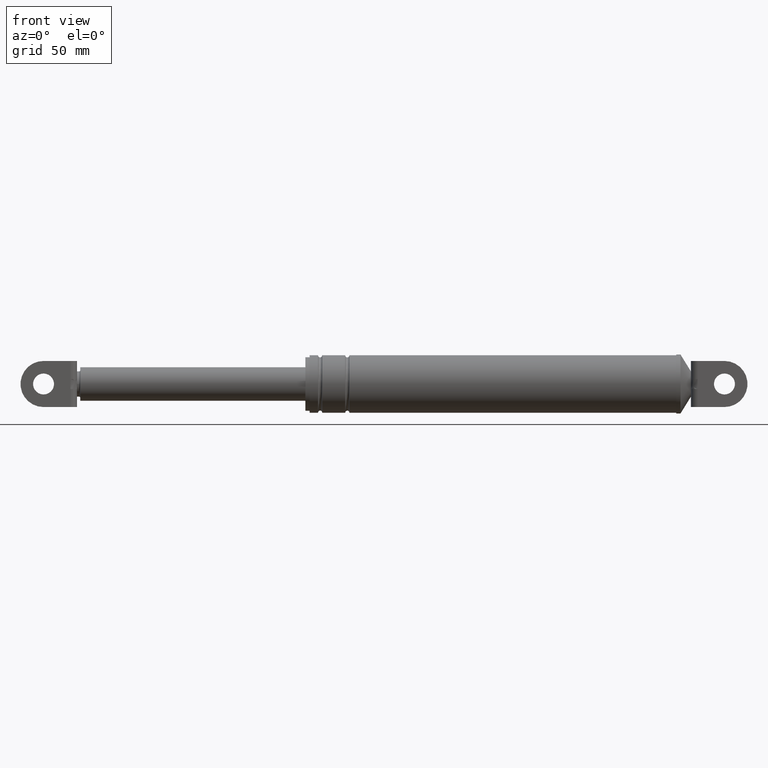
[diagram: clean part render]
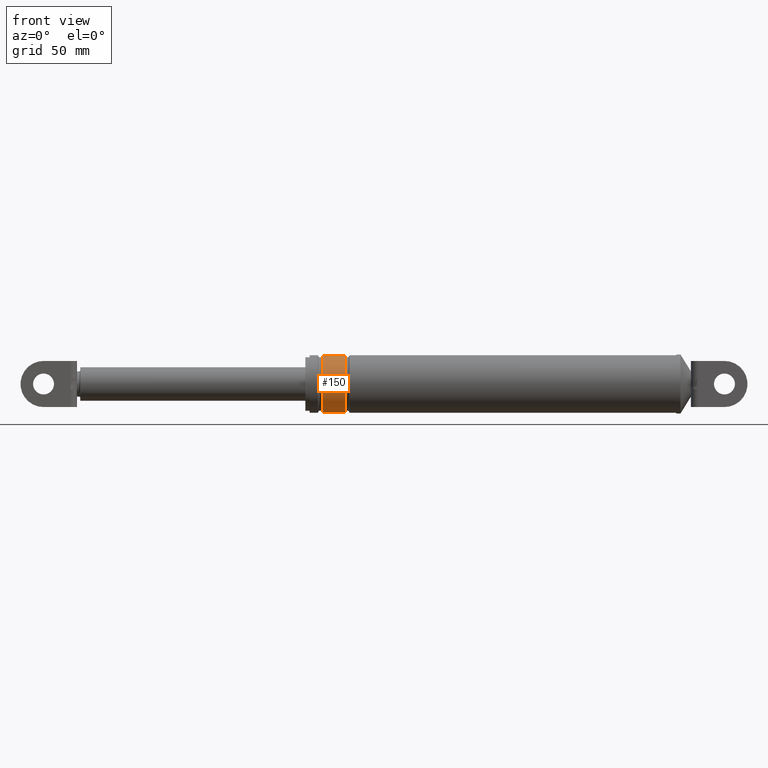
[diagram: same view with one face highlighted and labeled with its STEP entity id]
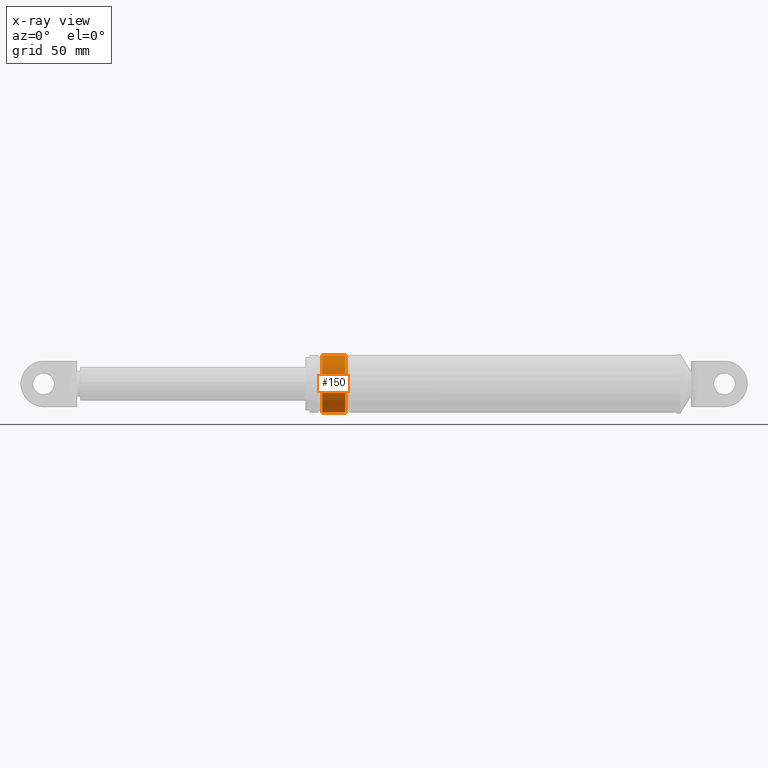
[diagram: x-ray of the same camera — body ghosted, the highlighted face saturated]
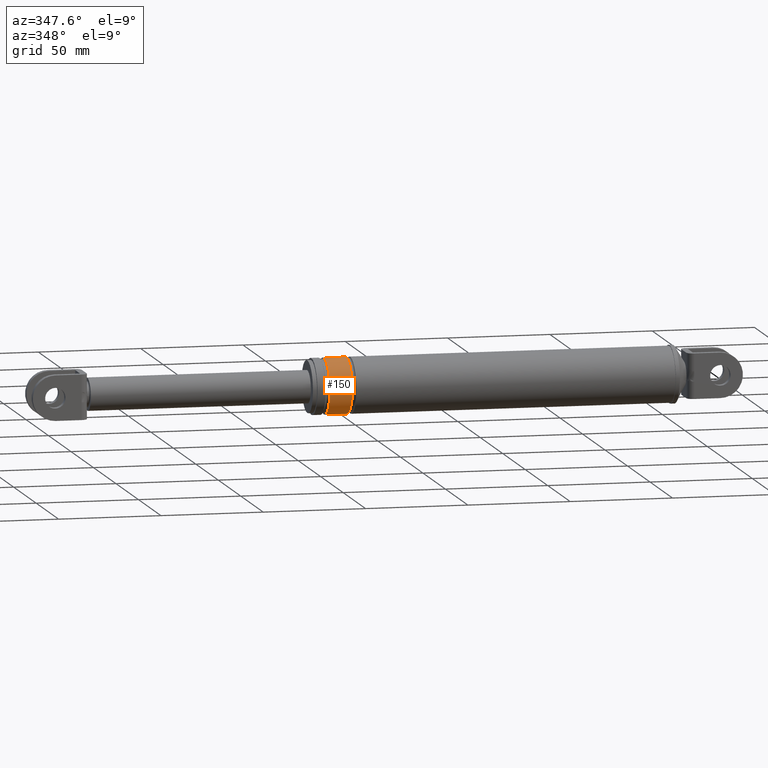
[diagram: same view with one face highlighted and labeled with its STEP entity id]
A machine part, front view. The second image highlights one B-rep face of the part: STEP entity #150.
The next image is the same camera in x-ray: the body ghosted, the highlighted face saturated — about 0% of this face is hidden behind the body in this view.
A second angle (auxiliary view) of the same face is appended — the face is thin or edge-on in the first view.
In plain terms, the highlighted cylindrical surface (edge-blend (fillet) strip) has radius 13.7 mm, axis along (1, 0, 0).
Its self-contained STEP definition (entity closure, byte-faithful):
#150=ADVANCED_FACE('',(#568),#567,.T.);
#567=CYLINDRICAL_SURFACE('',#1269,1.37000000000E+001);
#568=FACE_OUTER_BOUND('',#1270,.T.);
#1266=CARTESIAN_POINT('',(0.00000000000E+000,0.00000000000E+000,1.94124635626E+002));
#1267=DIRECTION('',(1.00000000000E+000,-0.00000000000E+000,-0.00000000000E+000));
#1268=DIRECTION('',(0.00000000000E+000,1.22464679915E-016,1.00000000000E+000));
#1269=AXIS2_PLACEMENT_3D('',#1266,#1267,#1268);
#1270=EDGE_LOOP('',(#1700,#1701,#1702,#1703));
#1700=ORIENTED_EDGE('',*,*,#1938,.T.);
#1701=ORIENTED_EDGE('',*,*,#1948,.F.);
#1702=ORIENTED_EDGE('',*,*,#1933,.F.);
#1703=ORIENTED_EDGE('',*,*,#1949,.T.);
#1933=EDGE_CURVE('',#2519,#2518,#2538,.T.);
#1938=EDGE_CURVE('',#2552,#2559,#2572,.T.);
#1948=EDGE_CURVE('',#2518,#2559,#2634,.T.);
#1949=EDGE_CURVE('',#2519,#2552,#2640,.T.);
#2518=VERTEX_POINT('',#3454);
#2519=VERTEX_POINT('',#3455);
#2538=CIRCLE('',#3475,1.37000000000E+001);
#2552=VERTEX_POINT('',#3482);
#2559=VERTEX_POINT('',#3488);
#2572=CIRCLE('',#3503,1.37000000000E+001);
#2634=(BOUNDED_CURVE() B_SPLINE_CURVE(1,(#3530,#3531),.UNSPECIFIED.,.F.,.F.) B_SPLINE_CURVE_WITH_KNOTS((2,2),(8.33333343261E-002,9.16666667006E-001),.UNSPECIFIED.) CURVE() GEOMETRIC_REPRESENTATION_ITEM() RATIONAL_B_SPLINE_CURVE((1.00000000000E+000,1.00000000000E+000)) REPRESENTATION_ITEM('') );
#2640=(BOUNDED_CURVE() B_SPLINE_CURVE(1,(#3532,#3533),.UNSPECIFIED.,.F.,.F.) B_SPLINE_CURVE_WITH_KNOTS((2,2),(8.33333333333E-002,9.16666666667E-001),.UNSPECIFIED.) CURVE() GEOMETRIC_REPRESENTATION_ITEM() RATIONAL_B_SPLINE_CURVE((7.50000000000E-001,7.50000000000E-001)) REPRESENTATION_ITEM('') );
#3454=CARTESIAN_POINT('',(1.84455556841E+002,0.00000000000E+000,2.07824635626E+002));
#3455=CARTESIAN_POINT('',(1.84455556841E+002,0.00000000000E+000,1.80424635626E+002));
#3472=CARTESIAN_POINT('',(1.84455556841E+002,0.00000000000E+000,1.94124635626E+002));
#3473=DIRECTION('',(-1.00000000000E+000,0.00000000000E+000,0.00000000000E+000));
#3474=DIRECTION('',(0.00000000000E+000,-1.22460635382E-016,1.00000000000E+000));
#3475=AXIS2_PLACEMENT_3D('',#3472,#3473,#3474);
#3482=CARTESIAN_POINT('',(1.95455556841E+002,0.00000000000E+000,1.80424635626E+002));
#3488=CARTESIAN_POINT('',(1.95455556841E+002,0.00000000000E+000,2.07824635626E+002));
#3500=CARTESIAN_POINT('',(1.95455556841E+002,0.00000000000E+000,1.94124635626E+002));
#3501=DIRECTION('',(-1.00000000000E+000,0.00000000000E+000,0.00000000000E+000));
#3502=DIRECTION('',(0.00000000000E+000,-1.22460635382E-016,1.00000000000E+000));
#3503=AXIS2_PLACEMENT_3D('',#3500,#3501,#3502);
#3530=CARTESIAN_POINT('',(1.84455556854E+002,1.67776611483E-015,2.07824635626E+002));
#3531=CARTESIAN_POINT('',(1.95455556845E+002,1.67776611483E-015,2.07824635626E+002));
#3532=CARTESIAN_POINT('',(1.84455556841E+002,-5.92118946467E-016,1.80424635626E+002));
#3533=CARTESIAN_POINT('',(1.95455556841E+002,-5.92118946467E-016,1.80424635626E+002));